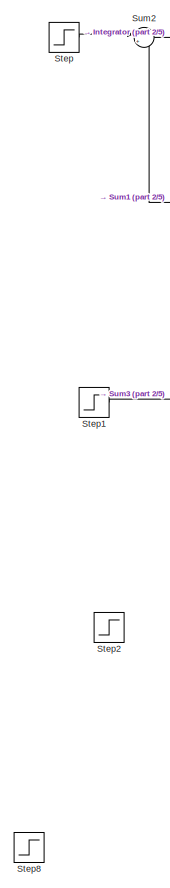
[diagram: root canvas - part 1/5, top left region]
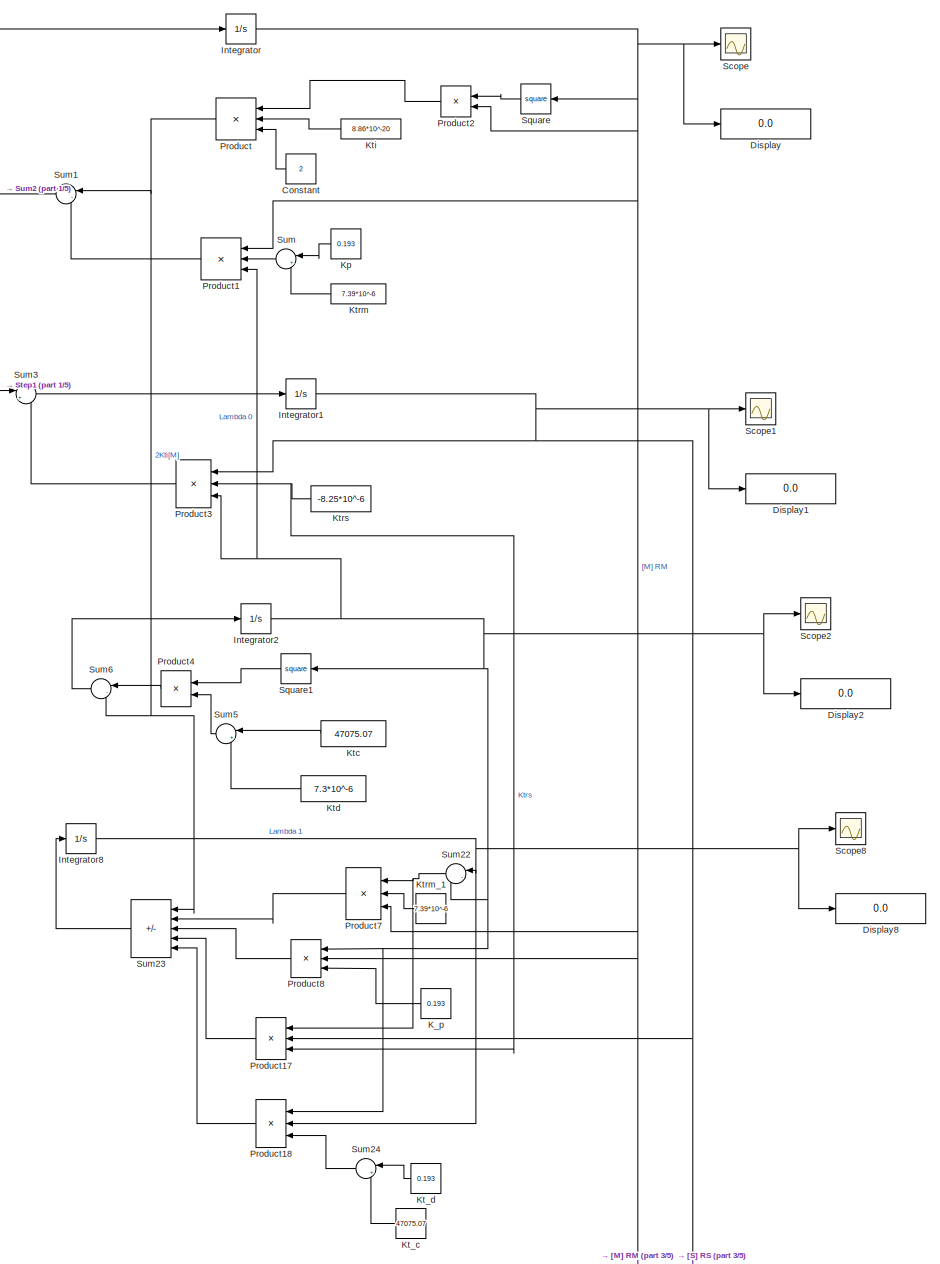
[diagram: root canvas - part 2/5, full width, top band]
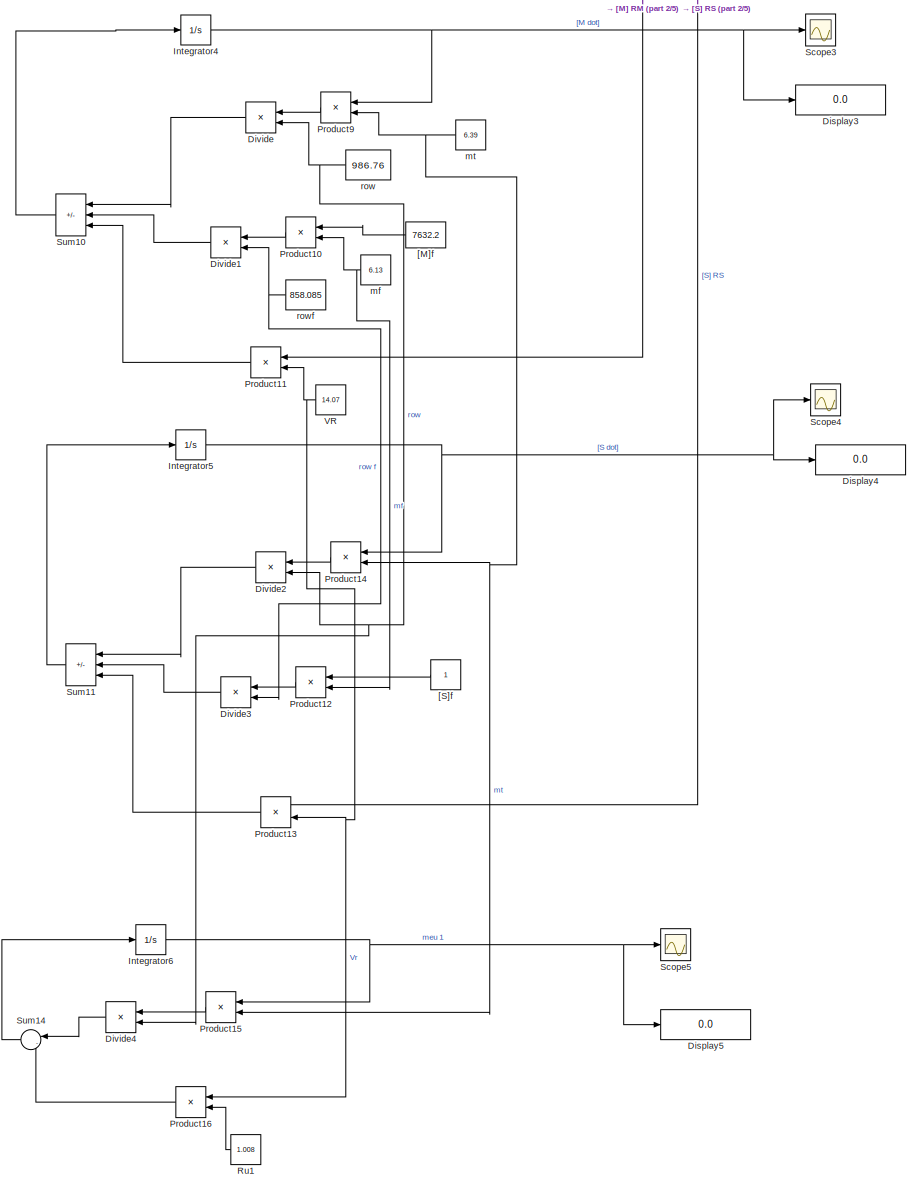
[diagram: root canvas - part 3/5, full width, middle band]
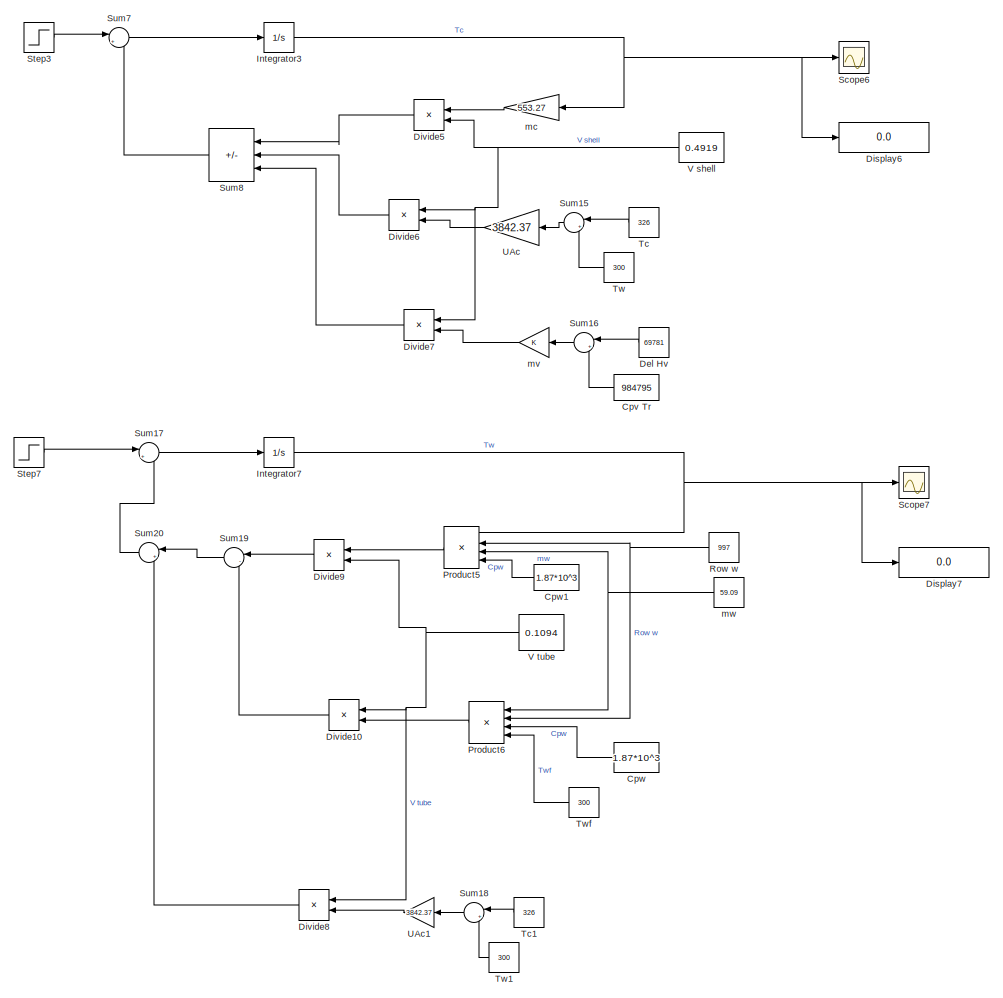
[diagram: root canvas - part 4/5, full width, bottom band]
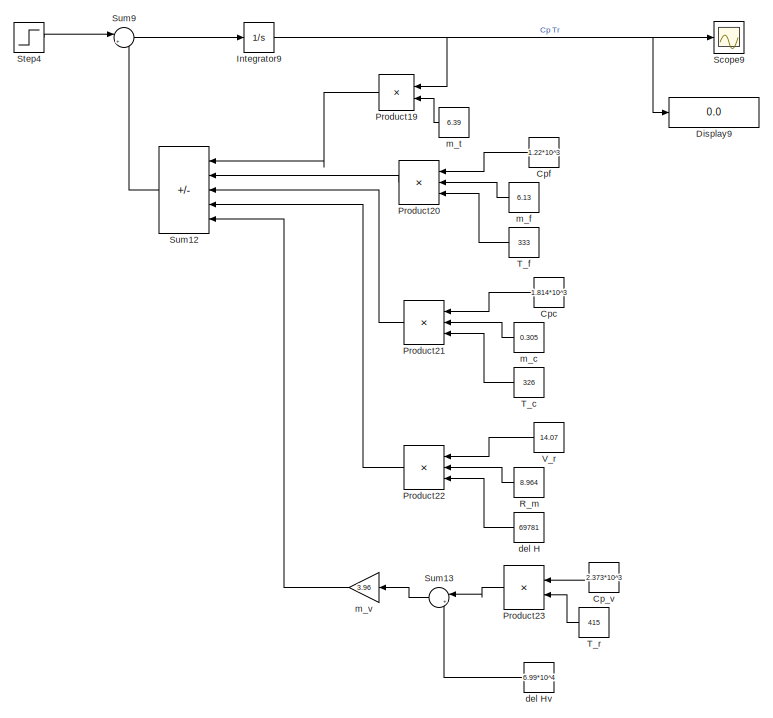
[diagram: root canvas - part 5/5, bottom left region]
MODEL slx_fb37999380d0
KIND model
CONFIG AbsTol = auto
CONFIG EnableMultiTasking = off
CONFIG FixedStep = auto
CONFIG MaxStep = auto
CONFIG MinStep = auto
CONFIG RelTol = 1e-3
CONFIG SampleTimeConstraint = Unconstrained
CONFIG SolverName = VariableStepAuto
CONFIG StartTime = 0.0
CONFIG StopTime = 500
BLOCK [Constant] Constant
  NameLocation = top
  Value = 2
BLOCK [Constant] Cp_v
  NameLocation = top
  Value = 2.373*10^3
BLOCK [Constant] Cpc
  NameLocation = top
  Value = 1.814*10^3
BLOCK [Constant] Cpf
  NameLocation = top
  Value = 1.22*10^3
BLOCK [Constant] Cpv Tr
  NameLocation = top
  Value = 984795
BLOCK [Constant] Cpw
  NameLocation = top
  Value = 1.87*10^3
BLOCK [Constant] Cpw1
  NameLocation = top
  Value = 1.87*10^3
BLOCK [Constant] Del Hv
  NameLocation = top
  Value = 69781
BLOCK [Display] Display
  Decimation = 1
  Ports = [1]
BLOCK [Display] Display1
  Decimation = 1
  Ports = [1]
BLOCK [Display] Display2
  Decimation = 1
  Ports = [1]
BLOCK [Display] Display3
  Decimation = 1
  Ports = [1]
BLOCK [Display] Display4
  Decimation = 1
  Ports = [1]
BLOCK [Display] Display5
  Decimation = 1
  Ports = [1]
BLOCK [Display] Display6
  Decimation = 1
  Ports = [1]
BLOCK [Display] Display7
  Decimation = 1
  Ports = [1]
BLOCK [Display] Display8
  Decimation = 1
  Ports = [1]
BLOCK [Display] Display9
  Decimation = 1
  Ports = [1]
BLOCK [Product] Divide
  Inputs = */
  NameLocation = top
  Ports = [2, 1]
BLOCK [Product] Divide1
  Inputs = */
  NameLocation = top
  Ports = [2, 1]
BLOCK [Product] Divide10
  Inputs = /*
  NameLocation = top
  Ports = [2, 1]
BLOCK [Product] Divide2
  Inputs = */
  NameLocation = top
  Ports = [2, 1]
BLOCK [Product] Divide3
  Inputs = */
  NameLocation = top
  Ports = [2, 1]
BLOCK [Product] Divide4
  Inputs = */
  NameLocation = top
  Ports = [2, 1]
BLOCK [Product] Divide5
  Inputs = */
  NameLocation = top
  Ports = [2, 1]
BLOCK [Product] Divide6
  Inputs = /*
  NameLocation = top
  Ports = [2, 1]
BLOCK [Product] Divide7
  Inputs = /*
  NameLocation = top
  Ports = [2, 1]
BLOCK [Product] Divide8
  Inputs = /*
  NameLocation = top
  Ports = [2, 1]
BLOCK [Product] Divide9
  Inputs = */
  NameLocation = top
  Ports = [2, 1]
BLOCK [Integrator] Integrator
  Ports = [1, 1]
BLOCK [Integrator] Integrator1
  Ports = [1, 1]
BLOCK [Integrator] Integrator2
  Ports = [1, 1]
BLOCK [Integrator] Integrator3
  InitialCondition = 415
  Ports = [1, 1]
BLOCK [Integrator] Integrator4
  InitialCondition = 7632.2
  Ports = [1, 1]
BLOCK [Integrator] Integrator5
  InitialCondition = 587.47
  Ports = [1, 1]
BLOCK [Integrator] Integrator6
  Ports = [1, 1]
BLOCK [Integrator] Integrator7
  Ports = [1, 1]
BLOCK [Integrator] Integrator8
  Ports = [1, 1]
BLOCK [Integrator] Integrator9
  Ports = [1, 1]
BLOCK [Constant] K_p
  NameLocation = top
  Value = 0.193
BLOCK [Constant] Kp
  NameLocation = top
  Value = 0.193
BLOCK [Constant] Kt_c
  NameLocation = top
  Value = 47075.07
BLOCK [Constant] Kt_d
  NameLocation = top
  Value = 0.193
BLOCK [Constant] Ktc
  NameLocation = top
  Value = 47075.07
BLOCK [Constant] Ktd
  NameLocation = top
  Value = 7.3*10^-6
BLOCK [Constant] Kti
  NameLocation = top
  Value = 8.86*10^-20
BLOCK [Constant] Ktrm
  NameLocation = top
  Value = 7.39*10^-6
BLOCK [Constant] Ktrm_1
  NameLocation = top
  Value = 7.39*10^-6
BLOCK [Constant] Ktrs
  NameLocation = top
  Value = -8.25*10^-6
BLOCK [Product] Product
  Inputs = 3
  NameLocation = top
  Ports = [3, 1]
BLOCK [Product] Product1
  Inputs = 3
  NameLocation = top
  Ports = [3, 1]
BLOCK [Product] Product10
  NameLocation = top
  Ports = [2, 1]
BLOCK [Product] Product11
  NameLocation = top
  Ports = [2, 1]
BLOCK [Product] Product12
  NameLocation = top
  Ports = [2, 1]
BLOCK [Product] Product13
  NameLocation = top
  Ports = [2, 1]
BLOCK [Product] Product14
  NameLocation = top
  Ports = [2, 1]
BLOCK [Product] Product15
  NameLocation = top
  Ports = [2, 1]
BLOCK [Product] Product16
  NameLocation = top
  Ports = [2, 1]
BLOCK [Product] Product17
  Inputs = 3
  NameLocation = top
  Ports = [3, 1]
BLOCK [Product] Product18
  Inputs = 3
  NameLocation = top
  Ports = [3, 1]
BLOCK [Product] Product19
  NameLocation = top
  Ports = [2, 1]
BLOCK [Product] Product2
  NameLocation = top
  Ports = [2, 1]
BLOCK [Product] Product20
  Inputs = 3
  NameLocation = top
  Ports = [3, 1]
BLOCK [Product] Product21
  Inputs = 3
  NameLocation = top
  Ports = [3, 1]
BLOCK [Product] Product22
  Inputs = 3
  NameLocation = top
  Ports = [3, 1]
BLOCK [Product] Product23
  NameLocation = top
  Ports = [2, 1]
BLOCK [Product] Product3
  Inputs = 3
  NameLocation = top
  Ports = [3, 1]
BLOCK [Product] Product4
  NameLocation = top
  Ports = [2, 1]
BLOCK [Product] Product5
  Inputs = 4
  NameLocation = top
  Ports = [4, 1]
BLOCK [Product] Product6
  Inputs = 4
  NameLocation = top
  Ports = [4, 1]
BLOCK [Product] Product7
  Inputs = 3
  NameLocation = top
  Ports = [3, 1]
BLOCK [Product] Product8
  Inputs = 3
  NameLocation = top
  Ports = [3, 1]
BLOCK [Product] Product9
  NameLocation = top
  Ports = [2, 1]
BLOCK [Constant] R_m
  NameLocation = top
  Value = 8.964
BLOCK [Constant] Row w
  NameLocation = top
  Value = 997
BLOCK [Constant] Ru1
  NameLocation = top
  Value = 1.008
BLOCK [Scope] Scope
  Floating = off
  NumInputPorts = 1
  Ports = [1]
  ScopeSpecificationString = Simulink.scopes.TimeScopeBlockCfg('CurrentConfiguration', extmgr.ConfigurationSet(extmgr.Configuration('Core','General UI',true,'FigureColor',[1 1 1]),extmgr.Configuration('Core','Source UI',true),extmgr.Configuration('Sources','WiredSimulink',true),extmgr.Configuration('Visuals','Time Domain',true,'SerializedDisplays',{struct('MinYLimReal','-15.625','MaxYLimReal','140.625','YLabelReal','','MinYLi...<+1475ch>
BLOCK [Scope] Scope1
  Floating = off
  NumInputPorts = 1
  Ports = [1]
  ScopeSpecificationString = Simulink.scopes.TimeScopeBlockCfg('CurrentConfiguration', extmgr.ConfigurationSet(extmgr.Configuration('Core','General UI',true,'FigureColor',[1 1 1]),extmgr.Configuration('Core','Source UI',true),extmgr.Configuration('Sources','WiredSimulink',true,'DataLoggingVariableName','ScopeData1'),extmgr.Configuration('Visuals','Time Domain',true,'SerializedDisplays',{struct('MinYLimReal','-0.625','MaxYLimR...<+1504ch>
BLOCK [Scope] Scope2
  Floating = off
  NumInputPorts = 1
  Ports = [1]
  ScopeSpecificationString = Simulink.scopes.TimeScopeBlockCfg('CurrentConfiguration', extmgr.ConfigurationSet(extmgr.Configuration('Core','General UI',true,'FigureColor',[1 1 1]),extmgr.Configuration('Core','Source UI',true),extmgr.Configuration('Sources','WiredSimulink',true,'DataLoggingVariableName','ScopeData2'),extmgr.Configuration('Visuals','Time Domain',true,'SerializedDisplays',{struct('MinYLimReal','-0.000000000005',...<+1595ch>
BLOCK [Scope] Scope3
  Floating = off
  NumInputPorts = 1
  Ports = [1]
  ScopeSpecificationString = Simulink.scopes.TimeScopeBlockCfg('CurrentConfiguration', extmgr.ConfigurationSet(extmgr.Configuration('Core','General UI',true),extmgr.Configuration('Core','Source UI',true),extmgr.Configuration('Sources','WiredSimulink',true,'DataLoggingVariableName','ScopeData3'),extmgr.Configuration('Visuals','Time Domain',true,'SerializedDisplays',{struct('MinYLimReal','-16337.74774','MaxYLimReal','223361.729...<+1400ch>
BLOCK [Scope] Scope4
  Floating = off
  NumInputPorts = 1
  Ports = [1]
  ScopeSpecificationString = Simulink.scopes.TimeScopeBlockCfg('CurrentConfiguration', extmgr.ConfigurationSet(extmgr.Configuration('Core','General UI',true),extmgr.Configuration('Core','Source UI',true),extmgr.Configuration('Sources','WiredSimulink',true,'DataLoggingVariableName','ScopeData4'),extmgr.Configuration('Visuals','Time Domain',true,'SerializedDisplays',{struct('MinYLimReal','-348.14432','MaxYLimReal','8554.50433',...<+1384ch>
BLOCK [Scope] Scope5
  Floating = off
  NumInputPorts = 1
  Ports = [1]
  ScopeSpecificationString = Simulink.scopes.TimeScopeBlockCfg('CurrentConfiguration', extmgr.ConfigurationSet(extmgr.Configuration('Core','General UI',true),extmgr.Configuration('Core','Source UI',true),extmgr.Configuration('Sources','WiredSimulink',true,'DataLoggingVariableName','ScopeData5'),extmgr.Configuration('Visuals','Time Domain',true,'SerializedDisplays',{struct('MinYLimReal','-17.16638','MaxYLimReal','154.49739','Y...<+1374ch>
BLOCK [Scope] Scope6
  Floating = off
  NumInputPorts = 1
  Ports = [1]
  ScopeSpecificationString = Simulink.scopes.TimeScopeBlockCfg('CurrentConfiguration', extmgr.ConfigurationSet(extmgr.Configuration('Core','General UI',true),extmgr.Configuration('Core','Source UI',true),extmgr.Configuration('Sources','WiredSimulink',true,'DataLoggingVariableName','ScopeData6'),extmgr.Configuration('Visuals','Time Domain',true,'SerializedDisplays',{struct('MinYLimReal','251.15145','MaxYLimReal','1889.63697','...<+1379ch>
BLOCK [Scope] Scope7
  Floating = off
  NumInputPorts = 1
  Ports = [1]
  ScopeSpecificationString = Simulink.scopes.TimeScopeBlockCfg('CurrentConfiguration', extmgr.ConfigurationSet(extmgr.Configuration('Core','General UI',true),extmgr.Configuration('Core','Source UI',true),extmgr.Configuration('Sources','WiredSimulink',true,'DataLoggingVariableName','ScopeData7'),extmgr.Configuration('Visuals','Time Domain',true,'SerializedDisplays',{struct('MinYLimReal','-37.50274','MaxYLimReal','337.52462','Y...<+1371ch>
BLOCK [Scope] Scope8
  Floating = off
  NumInputPorts = 1
  Ports = [1]
  ScopeSpecificationString = Simulink.scopes.TimeScopeBlockCfg('CurrentConfiguration', extmgr.ConfigurationSet(extmgr.Configuration('Core','General UI',true,'FigureColor',[1 1 1]),extmgr.Configuration('Core','Source UI',true),extmgr.Configuration('Sources','WiredSimulink',true,'DataLoggingVariableName','ScopeData8'),extmgr.Configuration('Visuals','Time Domain',true,'SerializedDisplays',{struct('MinYLimReal','-0.00000001','Max...<+1562ch>
BLOCK [Scope] Scope9
  Floating = off
  NumInputPorts = 1
  Ports = [1]
  ScopeSpecificationString = Simulink.scopes.TimeScopeBlockCfg('CurrentConfiguration', extmgr.ConfigurationSet(extmgr.Configuration('Core','General UI',true),extmgr.Configuration('Core','Source UI',true),extmgr.Configuration('Sources','WiredSimulink',true,'DataLoggingVariableName','ScopeData9'),extmgr.Configuration('Visuals','Time Domain',true,'SerializedDisplays',{struct('MinYLimReal','-1814600.52711','MaxYLimReal','201622.2...<+1408ch>
BLOCK [Math] Square
  NameLocation = top
  Operator = square
  Ports = [1, 1]
BLOCK [Math] Square1
  NameLocation = top
  Operator = square
  Ports = [1, 1]
BLOCK [Step] Step
  After = 0.25
  Before = 0.001
  SampleTime = 0
  Time = 0
BLOCK [Step] Step1
  After = 0.01
  Before = 0.001
  SampleTime = 0
  Time = 0
BLOCK [Step] Step2
  SampleTime = 0
BLOCK [Step] Step3
  SampleTime = 0
BLOCK [Step] Step4
  SampleTime = 0
BLOCK [Step] Step7
  After = 326
  SampleTime = 0
BLOCK [Step] Step8
  SampleTime = 0
BLOCK [Sum] Sum
  Inputs = |++
  NameLocation = top
  Ports = [2, 1]
BLOCK [Sum] Sum1
  Inputs = |--
  NameLocation = top
  Ports = [2, 1]
BLOCK [Sum] Sum10
  IconShape = rectangular
  Inputs = |-++
  NameLocation = top
  Ports = [3, 1]
BLOCK [Sum] Sum11
  IconShape = rectangular
  Inputs = |-++
  NameLocation = top
  Ports = [3, 1]
BLOCK [Sum] Sum12
  IconShape = rectangular
  Inputs = |-++--
  NameLocation = top
  Ports = [5, 1]
BLOCK [Sum] Sum13
  Inputs = |++
  NameLocation = top
  Ports = [2, 1]
BLOCK [Sum] Sum14
  Inputs = |-+
  NameLocation = top
  Ports = [2, 1]
BLOCK [Sum] Sum15
  Inputs = |+-
  NameLocation = top
  Ports = [2, 1]
BLOCK [Sum] Sum16
  Inputs = |++
  NameLocation = top
  Ports = [2, 1]
BLOCK [Sum] Sum17
  Inputs = |++
  Ports = [2, 1]
BLOCK [Sum] Sum18
  Inputs = |+-
  NameLocation = top
  Ports = [2, 1]
BLOCK [Sum] Sum19
  Inputs = |-+
  NameLocation = top
  Ports = [2, 1]
BLOCK [Sum] Sum2
  Inputs = |++
  Ports = [2, 1]
BLOCK [Sum] Sum20
  Inputs = |++
  NameLocation = top
  Ports = [2, 1]
BLOCK [Sum] Sum22
  Inputs = |-+
  NameLocation = top
  Ports = [2, 1]
BLOCK [Sum] Sum23
  IconShape = rectangular
  Inputs = |+-+--
  NameLocation = top
  Ports = [5, 1]
BLOCK [Sum] Sum24
  Inputs = |++
  NameLocation = top
  Ports = [2, 1]
BLOCK [Sum] Sum3
  Inputs = |++
  Ports = [2, 1]
BLOCK [Sum] Sum5
  Inputs = |++
  NameLocation = top
  Ports = [2, 1]
BLOCK [Sum] Sum6
  Inputs = |-+
  NameLocation = top
  Ports = [2, 1]
BLOCK [Sum] Sum7
  Inputs = |++
  Ports = [2, 1]
BLOCK [Sum] Sum8
  IconShape = rectangular
  Inputs = |--+
  NameLocation = top
  Ports = [3, 1]
BLOCK [Sum] Sum9
  Inputs = |++
  Ports = [2, 1]
BLOCK [Constant] T_c
  NameLocation = top
  Value = 326
BLOCK [Constant] T_f
  NameLocation = top
  Value = 333
BLOCK [Constant] T_r
  NameLocation = top
  Value = 415
BLOCK [Constant] Tc
  NameLocation = top
  Value = 326
BLOCK [Constant] Tc1
  NameLocation = top
  Value = 326
BLOCK [Constant] Tw
  NameLocation = top
  Value = 300
BLOCK [Constant] Tw1
  NameLocation = top
  Value = 300
BLOCK [Constant] Twf
  NameLocation = top
  Value = 300
BLOCK [Gain] UAc
  Gain = 3842.37
  NameLocation = top
BLOCK [Gain] UAc1
  Gain = 3842.37
  NameLocation = top
BLOCK [Constant] V shell
  NameLocation = top
  Value = 0.4919
BLOCK [Constant] V tube
  NameLocation = top
  Value = 0.1094
BLOCK [Constant] VR
  NameLocation = top
  Value = 14.07
BLOCK [Constant] V_r
  NameLocation = top
  Value = 14.07
BLOCK [Constant] [M]f
  NameLocation = top
  Value = 7632.2
BLOCK [Constant] [S]f
  NameLocation = top
BLOCK [Constant] del H
  NameLocation = top
  Value = 69781
BLOCK [Constant] del Hv
  NameLocation = top
  Value = 6.99*10^4
BLOCK [Constant] m_c
  NameLocation = top
  Value = 0.305
BLOCK [Constant] m_f
  NameLocation = top
  Value = 6.13
BLOCK [Constant] m_t
  NameLocation = top
  Value = 6.39
BLOCK [Gain] m_v
  Gain = 3.96
  NameLocation = top
BLOCK [Gain] mc
  Gain = 553.27
  NameLocation = top
BLOCK [Constant] mf
  NameLocation = top
  Value = 6.13
BLOCK [Constant] mt
  NameLocation = top
  Value = 6.39
BLOCK [Gain] mv
  NameLocation = top
BLOCK [Constant] mw
  NameLocation = top
  Value = 59.09
BLOCK [Constant] row
  NameLocation = top
  Value = 986.76
BLOCK [Constant] rowf
  NameLocation = top
  Value = 858.085
LINE Constant:1 -> Product:3
LINE Cp_v:1 -> Product23:1
LINE Cpc:1 -> Product21:1
LINE Cpf:1 -> Product20:1
LINE Cpv Tr:1 -> Sum16:2
LINE Cpw1:1 -> Product5:4
LINE Cpw:1 -> Product6:3
LINE Del Hv:1 -> Sum16:1
LINE Divide10:1 -> Sum19:2
LINE Divide1:1 -> Sum10:2
LINE Divide2:1 -> Sum11:1
LINE Divide3:1 -> Sum11:2
LINE Divide4:1 -> Sum14:1
LINE Divide5:1 -> Sum8:1
LINE Divide6:1 -> Sum8:2
LINE Divide7:1 -> Sum8:3
LINE Divide8:1 -> Sum20:2
LINE Divide9:1 -> Sum19:1
LINE Divide:1 -> Sum10:1
NET Integrator1:1 -> Display1:1, Product13:1, Product17:2, Product3:1, Scope1:1
NET Integrator2:1 -> Display2:1, Product18:1, Product1:3, Product3:3, Product8:1, Scope2:1, Square1:1, Sum22:2
NET Integrator3:1 -> Display6:1, Scope6:1, mc:1
NET Integrator4:1 -> Display3:1, Product9:1, Scope3:1
NET Integrator5:1 -> Display4:1, Product14:1, Scope4:1
NET Integrator6:1 -> Display5:1, Product15:1, Scope5:1
NET Integrator7:1 -> Display7:1, Product5:1, Scope7:1
NET Integrator8:1 -> Display8:1, Product18:2, Scope8:1, Sum22:1
NET Integrator9:1 -> Display9:1, Product19:1, Scope9:1
NET Integrator:1 -> Display:1, Product11:1, Product1:1, Product2:2, Product7:3, Product8:2, Scope:1, Square:1
LINE K_p:1 -> Product8:3
LINE Kp:1 -> Sum:1
LINE Kt_c:1 -> Sum24:2
LINE Kt_d:1 -> Sum24:1
LINE Ktc:1 -> Sum5:1
LINE Ktd:1 -> Sum5:2
LINE Kti:1 -> Product:2
LINE Ktrm:1 -> Sum:2
LINE Ktrm_1:1 -> Product7:2
NET Ktrs:1 -> Product17:3, Product3:2
LINE Product10:1 -> Divide1:1
LINE Product11:1 -> Sum10:3
LINE Product12:1 -> Divide3:1
LINE Product13:1 -> Sum11:3
LINE Product14:1 -> Divide2:1
LINE Product15:1 -> Divide4:1
LINE Product16:1 -> Sum14:2
LINE Product17:1 -> Sum23:4
LINE Product18:1 -> Sum23:5
LINE Product19:1 -> Sum12:1
LINE Product1:1 -> Sum1:2
LINE Product20:1 -> Sum12:2
LINE Product21:1 -> Sum12:3
LINE Product22:1 -> Sum12:4
LINE Product23:1 -> Sum13:1
LINE Product2:1 -> Product:1
LINE Product3:1 -> Sum3:2
LINE Product4:1 -> Sum6:1
LINE Product5:1 -> Divide9:1
LINE Product6:1 -> Divide10:2
LINE Product7:1 -> Sum23:2
LINE Product8:1 -> Sum23:3
LINE Product9:1 -> Divide:1
NET Product:1 -> Sum1:1, Sum23:1, Sum6:2
LINE R_m:1 -> Product22:2
NET Row w:1 -> Product5:2, Product6:2
LINE Ru1:1 -> Product16:2
LINE Square1:1 -> Product4:1
LINE Square:1 -> Product2:1
LINE Step1:1 -> Sum3:1
LINE Step3:1 -> Sum7:1
LINE Step4:1 -> Sum9:1
LINE Step7:1 -> Sum17:1
LINE Step:1 -> Sum2:1
LINE Sum10:1 -> Integrator4:1
LINE Sum11:1 -> Integrator5:1
LINE Sum12:1 -> Sum9:2
LINE Sum13:1 -> m_v:1
LINE Sum14:1 -> Integrator6:1
LINE Sum15:1 -> UAc:1
LINE Sum16:1 -> mv:1
LINE Sum17:1 -> Integrator7:1
LINE Sum18:1 -> UAc1:1
LINE Sum19:1 -> Sum20:1
LINE Sum1:1 -> Sum2:2
LINE Sum20:1 -> Sum17:2
NET Sum22:1 -> Product17:1, Product7:1
LINE Sum23:1 -> Integrator8:1
LINE Sum24:1 -> Product18:3
LINE Sum2:1 -> Integrator:1
LINE Sum3:1 -> Integrator1:1
LINE Sum5:1 -> Product4:2
LINE Sum6:1 -> Integrator2:1
LINE Sum7:1 -> Integrator3:1
LINE Sum8:1 -> Sum7:2
LINE Sum9:1 -> Integrator9:1
LINE Sum:1 -> Product1:2
LINE T_c:1 -> Product21:3
LINE T_f:1 -> Product20:3
LINE T_r:1 -> Product23:2
LINE Tc1:1 -> Sum18:1
LINE Tc:1 -> Sum15:1
LINE Tw1:1 -> Sum18:2
LINE Tw:1 -> Sum15:2
LINE Twf:1 -> Product6:4
LINE UAc1:1 -> Divide8:2
LINE UAc:1 -> Divide6:2
NET V shell:1 -> Divide5:2, Divide6:1, Divide7:1
NET V tube:1 -> Divide10:1, Divide8:1, Divide9:2
NET VR:1 -> Product11:2, Product13:2, Product16:1
LINE V_r:1 -> Product22:1
LINE [M]f:1 -> Product10:1
LINE [S]f:1 -> Product12:1
LINE del H:1 -> Product22:3
LINE del Hv:1 -> Sum13:2
LINE m_c:1 -> Product21:2
LINE m_f:1 -> Product20:2
LINE m_t:1 -> Product19:2
LINE m_v:1 -> Sum12:5
LINE mc:1 -> Divide5:1
NET mf:1 -> Product10:2, Product12:2
NET mt:1 -> Product14:2, Product15:2, Product9:2
LINE mv:1 -> Divide7:2
NET mw:1 -> Product5:3, Product6:1
NET row:1 -> Divide2:2, Divide4:2, Divide:2
NET rowf:1 -> Divide1:2, Divide3:2
note: NET lines group one-source signal fan-out (src -> all destinations, sorted); 1:1 wires keep LINE
